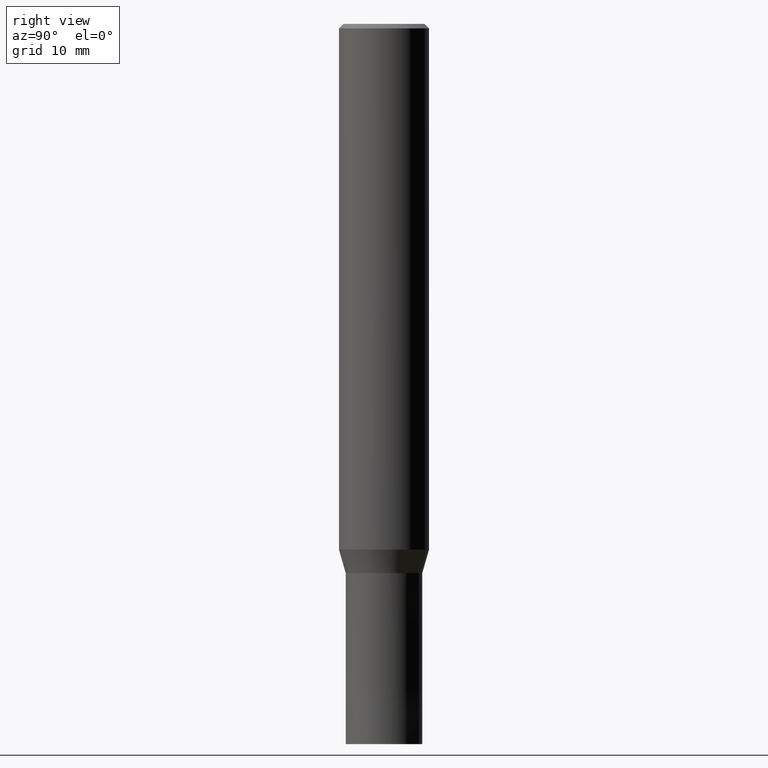
[diagram: clean part render]
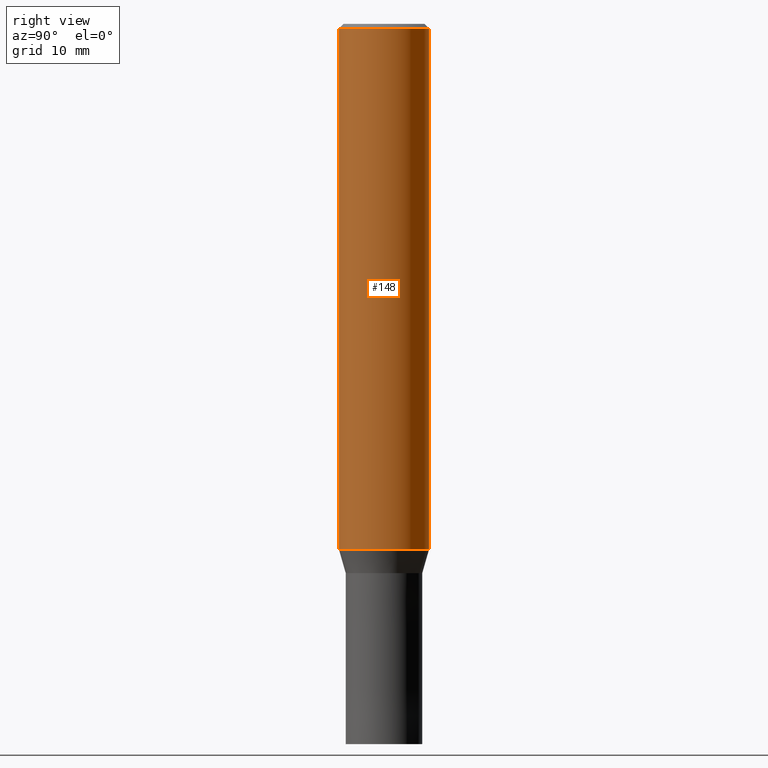
[diagram: same view with one face highlighted and labeled with its STEP entity id]
A machine part, right view. The second image highlights one B-rep face of the part: STEP entity #148.
In plain terms, the highlighted cylindrical surface (partial cylindrical patch) has radius 5 mm, axis along (-0, -0, 1).
Its self-contained STEP definition (entity closure, byte-faithful):
#88=VERTEX_POINT('',#210);
#94=EDGE_CURVE('',#140,#88,#216,.T.);
#106=EDGE_CURVE('',#150,#88,#230,.T.);
#134=EDGE_CURVE('',#136,#150,#261,.T.);
#136=VERTEX_POINT('',#263);
#138=EDGE_CURVE('',#140,#136,#265,.T.);
#140=VERTEX_POINT('',#267);
#148=ADVANCED_FACE('',(#275),#276,.T.);
#150=VERTEX_POINT('',#278);
#210=CARTESIAN_POINT('',(6.12303176911189E-016,-5.0,-0.5));
#216=CIRCLE('',#346,5.0);
#230=LINE('',#364,#365);
#261=CIRCLE('',#403,5.0);
#263=CARTESIAN_POINT('',(0.0,5.0,-58.384));
#265=LINE('',#408,#409);
#267=CARTESIAN_POINT('',(0.0,5.0,-0.5));
#275=FACE_OUTER_BOUND('',#423,.T.);
#276=CYLINDRICAL_SURFACE('',#424,5.0);
#278=CARTESIAN_POINT('',(6.12303176911189E-016,-5.0,-58.384));
#346=AXIS2_PLACEMENT_3D('',#485,#486,#487);
#364=CARTESIAN_POINT('',(6.12303176911189E-016,-5.0,-29.442));
#365=VECTOR('',#511,1.0);
#403=AXIS2_PLACEMENT_3D('',#556,#557,#558);
#408=CARTESIAN_POINT('',(-6.12303176911189E-016,5.0,-29.442));
#409=VECTOR('',#559,1.0);
#423=EDGE_LOOP('',(#563,#564,#565,#566));
#424=AXIS2_PLACEMENT_3D('',#567,#568,#569);
#485=CARTESIAN_POINT('',(0.0,0.0,-0.5));
#486=DIRECTION('',(0.0,0.0,-1.0));
#487=DIRECTION('',(0.0,1.0,0.0));
#511=DIRECTION('',(-0.0,-0.0,1.0));
#556=CARTESIAN_POINT('',(0.0,0.0,-58.384));
#557=DIRECTION('',(0.0,0.0,-1.0));
#558=DIRECTION('',(0.0,1.0,0.0));
#559=DIRECTION('',(0.0,0.0,-1.0));
#563=ORIENTED_EDGE('',*,*,#138,.F.);
#564=ORIENTED_EDGE('',*,*,#94,.T.);
#565=ORIENTED_EDGE('',*,*,#106,.F.);
#566=ORIENTED_EDGE('',*,*,#134,.F.);
#567=CARTESIAN_POINT('',(0.0,0.0,-29.442));
#568=DIRECTION('',(-0.0,-0.0,1.0));
#569=DIRECTION('',(0.0,1.0,0.0));